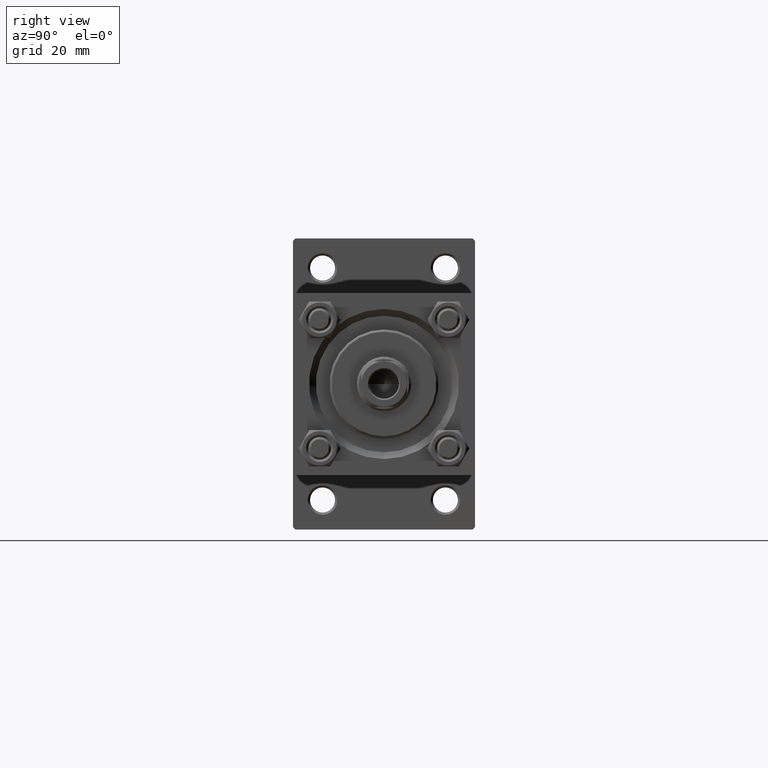
[diagram: clean part render]
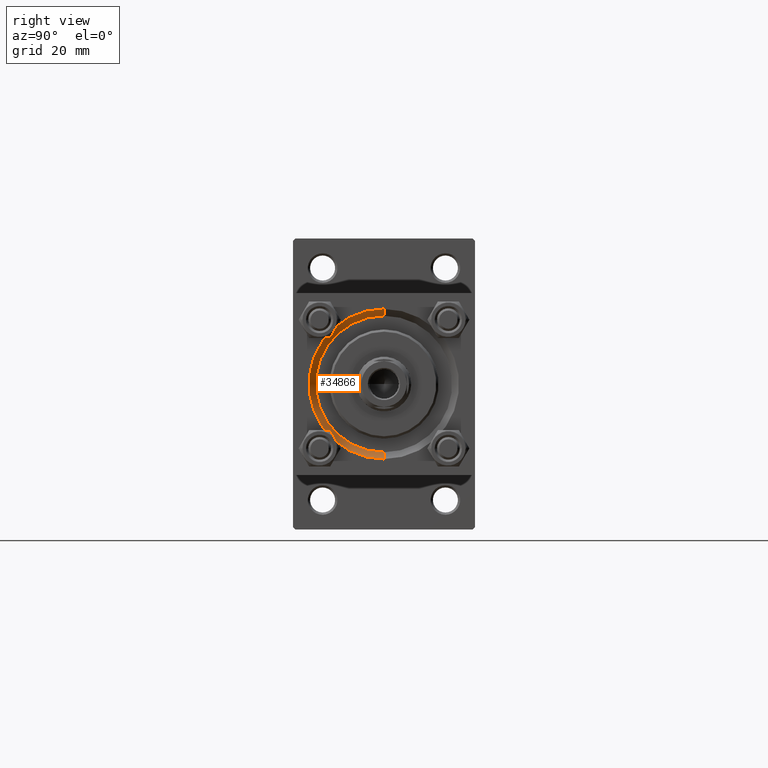
[diagram: same view with one face highlighted and labeled with its STEP entity id]
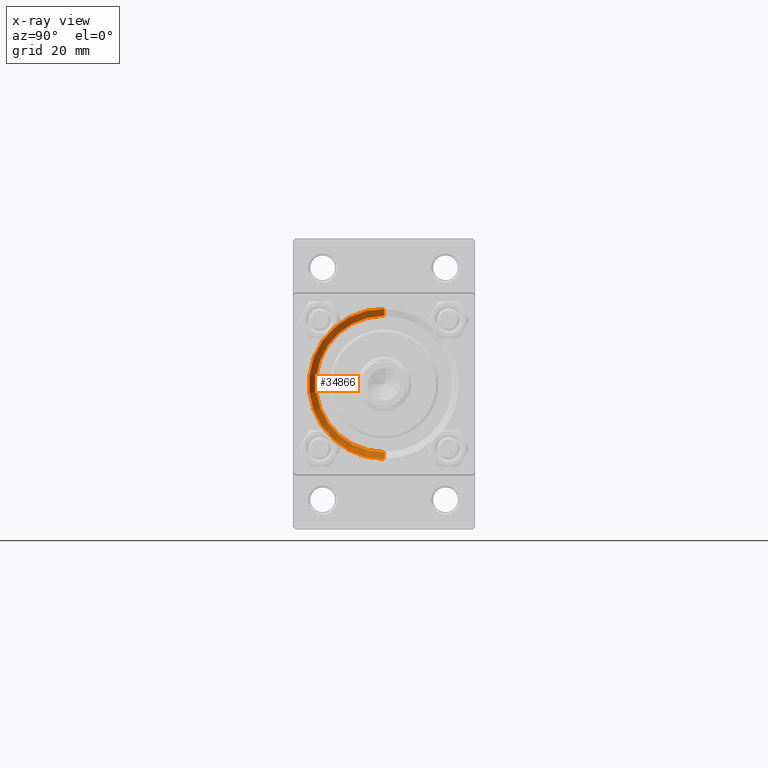
[diagram: x-ray of the same camera — body ghosted, the highlighted face saturated]
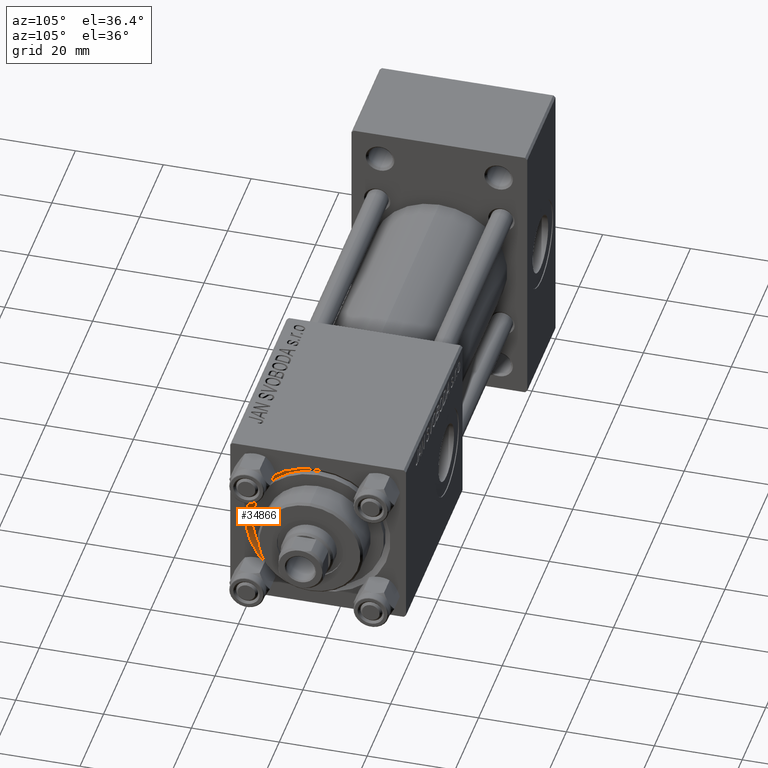
[diagram: same view with one face highlighted and labeled with its STEP entity id]
A machine part, right view. The second image highlights one B-rep face of the part: STEP entity #34866.
The next image is the same camera in x-ray: the body ghosted, the highlighted face saturated — about 0% of this face is hidden behind the body in this view.
A second angle (auxiliary view) of the same face is appended — the face is thin or edge-on in the first view.
In plain terms, the highlighted conical surface has half-angle 45 deg.
Its self-contained STEP definition (entity closure, byte-faithful):
#942 = VERTEX_POINT ( 'NONE', #32571 ) ;
#1000 = CARTESIAN_POINT ( 'NONE',  ( 125.4999999999999716, 0.000000000000000000, 0.000000000000000000 ) ) ;
#1531 = LINE ( 'NONE', #47970, #15714 ) ;
#4846 = EDGE_CURVE ( 'NONE', #19959, #49023, #18707, .T. ) ;
#8175 = DIRECTION ( 'NONE',  ( 0.000000000000000000, 0.000000000000000000, 1.000000000000000000 ) ) ;
#11255 = EDGE_CURVE ( 'NONE', #942, #19959, #18338, .T. ) ;
#14125 = CARTESIAN_POINT ( 'NONE',  ( 127.0000000000000000, 2.020667218593134678E-15, 16.50000000000001421 ) ) ;
#15714 = VECTOR ( 'NONE', #25255, 1000.000000000000114 ) ;
#18338 = CIRCLE ( 'NONE', #38747, 15.00000000000000000 ) ;
#18707 = LINE ( 'NONE', #35038, #38428 ) ;
#19959 = VERTEX_POINT ( 'NONE', #23447 ) ;
#21503 = CONICAL_SURFACE ( 'NONE', #35998, 15.00000000000000000, 0.7853981633974437271 ) ;
#21581 = CARTESIAN_POINT ( 'NONE',  ( 125.4999999999999716, 0.000000000000000000, 0.000000000000000000 ) ) ;
#22958 = DIRECTION ( 'NONE',  ( 0.7071067811865507924, 0.000000000000000000, -0.7071067811865442421 ) ) ;
#23447 = CARTESIAN_POINT ( 'NONE',  ( 125.4999999999999716, 0.000000000000000000, -15.00000000000000000 ) ) ;
#24918 = EDGE_CURVE ( 'NONE', #942, #36433, #1531, .T. ) ;
#25188 = ORIENTED_EDGE ( 'NONE', *, *, #11255, .F. ) ;
#25255 = DIRECTION ( 'NONE',  ( 0.7071067811865507924, 8.659560562354895880E-17, 0.7071067811865442421 ) ) ;
#27600 = CARTESIAN_POINT ( 'NONE',  ( 127.0000000000000000, 0.000000000000000000, 0.000000000000000000 ) ) ;
#28325 = ORIENTED_EDGE ( 'NONE', *, *, #24918, .T. ) ;
#29151 = DIRECTION ( 'NONE',  ( 1.000000000000000000, 0.000000000000000000, 0.000000000000000000 ) ) ;
#30076 = ORIENTED_EDGE ( 'NONE', *, *, #4846, .F. ) ;
#32571 = CARTESIAN_POINT ( 'NONE',  ( 125.4999999999999716, 1.836970198721029589E-15, 15.00000000000000000 ) ) ;
#32808 = DIRECTION ( 'NONE',  ( 1.000000000000000000, 0.000000000000000000, 0.000000000000000000 ) ) ;
#34866 = ADVANCED_FACE ( 'NONE', ( #35569 ), #21503, .F. ) ;
#35038 = CARTESIAN_POINT ( 'NONE',  ( 125.4999999999999716, 0.000000000000000000, -15.00000000000000000 ) ) ;
#35569 = FACE_OUTER_BOUND ( 'NONE', #41902, .T. ) ;
#35998 = AXIS2_PLACEMENT_3D ( 'NONE', #1000, #32808, #36333 ) ;
#36333 = DIRECTION ( 'NONE',  ( 0.000000000000000000, 0.000000000000000000, -1.000000000000000000 ) ) ;
#36433 = VERTEX_POINT ( 'NONE', #14125 ) ;
#36959 = DIRECTION ( 'NONE',  ( 0.000000000000000000, 0.000000000000000000, 1.000000000000000000 ) ) ;
#36964 = AXIS2_PLACEMENT_3D ( 'NONE', #27600, #38451, #8175 ) ;
#38428 = VECTOR ( 'NONE', #22958, 1000.000000000000114 ) ;
#38451 = DIRECTION ( 'NONE',  ( -1.000000000000000000, -0.000000000000000000, -0.000000000000000000 ) ) ;
#38580 = CIRCLE ( 'NONE', #36964, 16.50000000000001421 ) ;
#38747 = AXIS2_PLACEMENT_3D ( 'NONE', #21581, #29151, #36959 ) ;
#39275 = ORIENTED_EDGE ( 'NONE', *, *, #41943, .F. ) ;
#40471 = CARTESIAN_POINT ( 'NONE',  ( 127.0000000000000000, 0.000000000000000000, -16.50000000000001421 ) ) ;
#41902 = EDGE_LOOP ( 'NONE', ( #25188, #28325, #39275, #30076 ) ) ;
#41943 = EDGE_CURVE ( 'NONE', #49023, #36433, #38580, .T. ) ;
#47970 = CARTESIAN_POINT ( 'NONE',  ( 125.4999999999999716, 1.836970198721029589E-15, 15.00000000000000000 ) ) ;
#49023 = VERTEX_POINT ( 'NONE', #40471 ) ;